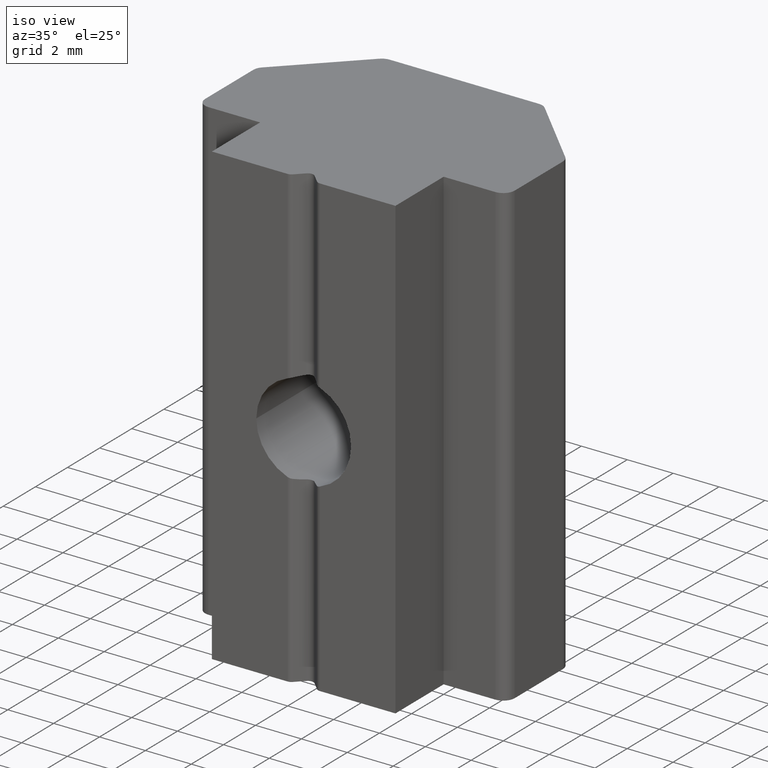
[diagram: clean part render]
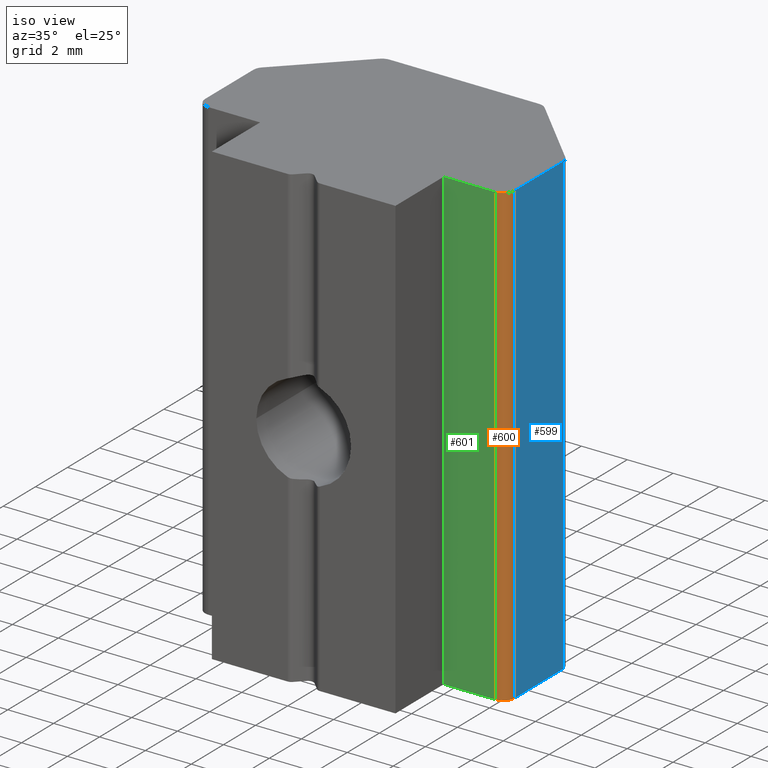
[diagram: same view with three faces highlighted in distinct colors, each labeled with its STEP entity id]
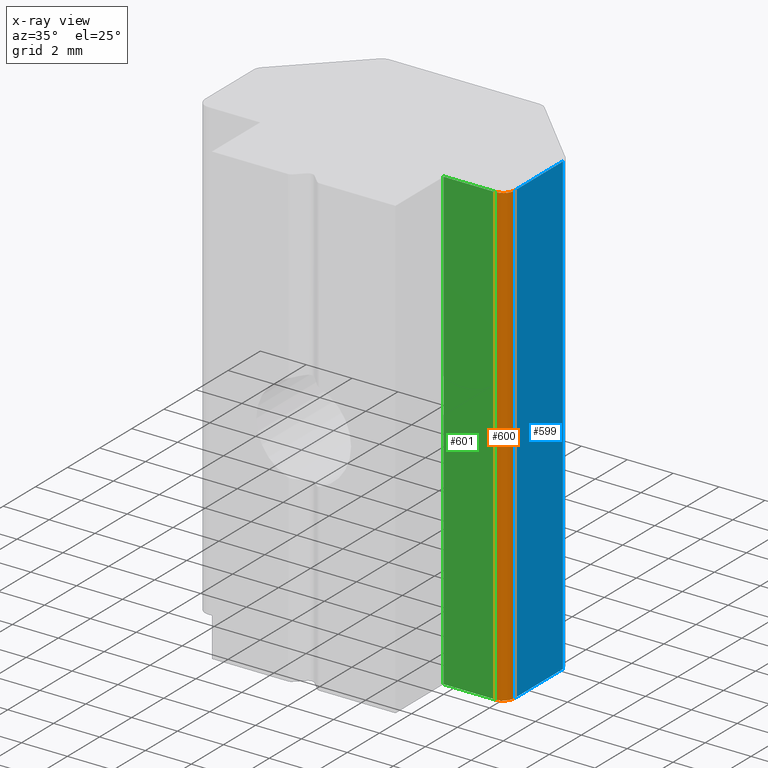
[diagram: x-ray of the same camera — body ghosted, the three highlighted faces saturated]
A machine part, iso view with three faces highlighted in distinct colors.
The next image is the same camera in x-ray (body ghosted, the three faces saturated) — at least one of them is partly hidden behind the body in this view.
Their STEP definitions:

[orange] entity #600 — the highlighted cylindrical surface (edge-blend (fillet) strip) has radius 0.5 mm, axis along (0, 0, 1).
#60=FACE_OUTER_BOUND('',#91,.T.);
#91=EDGE_LOOP('',(#530,#531,#532,#533));
#156=LINE('',#1059,#211);
#157=LINE('',#1063,#212);
#211=VECTOR('',#840,10.);
#212=VECTOR('',#845,10.);
#230=CIRCLE('',#657,0.499999999999999);
#236=CIRCLE('',#677,0.499999999999999);
#279=VERTEX_POINT('',#1001);
#280=VERTEX_POINT('',#1003);
#294=VERTEX_POINT('',#1057);
#295=VERTEX_POINT('',#1061);
#352=EDGE_CURVE('',#279,#280,#230,.T.);
#380=EDGE_CURVE('',#279,#294,#156,.T.);
#381=EDGE_CURVE('',#295,#294,#236,.T.);
#382=EDGE_CURVE('',#280,#295,#157,.T.);
#530=ORIENTED_EDGE('',*,*,#380,.T.);
#531=ORIENTED_EDGE('',*,*,#381,.F.);
#532=ORIENTED_EDGE('',*,*,#382,.F.);
#533=ORIENTED_EDGE('',*,*,#352,.F.);
#572=CYLINDRICAL_SURFACE('',#676,0.499999999999999);
#600=ADVANCED_FACE('',(#60),#572,.T.);
#657=AXIS2_PLACEMENT_3D('',#1004,#780,#781);
#676=AXIS2_PLACEMENT_3D('',#1060,#841,#842);
#677=AXIS2_PLACEMENT_3D('',#1062,#843,#844);
#780=DIRECTION('center_axis',(0.,0.,-1.));
#781=DIRECTION('ref_axis',(0.,-1.,0.));
#840=DIRECTION('',(0.,0.,1.));
#841=DIRECTION('center_axis',(0.,0.,1.));
#842=DIRECTION('ref_axis',(0.,-1.,0.));
#843=DIRECTION('center_axis',(0.,0.,1.));
#844=DIRECTION('ref_axis',(0.,-1.,0.));
#845=DIRECTION('',(0.,0.,1.));
#1001=CARTESIAN_POINT('',(6.75,0.5,-10.));
#1003=CARTESIAN_POINT('',(6.25,0.,-10.));
#1004=CARTESIAN_POINT('Origin',(6.25,0.5,-10.));
#1057=CARTESIAN_POINT('',(6.75,0.5,10.));
#1059=CARTESIAN_POINT('',(6.75,0.5,0.));
#1060=CARTESIAN_POINT('Origin',(6.25,0.5,0.));
#1061=CARTESIAN_POINT('',(6.25,0.,10.));
#1062=CARTESIAN_POINT('Origin',(6.25,0.5,10.));
#1063=CARTESIAN_POINT('',(6.25,0.,0.));

[blue] entity #599 — the highlighted planar face has unit normal (1, 0, 0).
#30=PLANE('',#675);
#59=FACE_OUTER_BOUND('',#90,.T.);
#90=EDGE_LOOP('',(#526,#527,#528,#529));
#133=LINE('',#1002,#188);
#154=LINE('',#1055,#209);
#155=LINE('',#1058,#210);
#156=LINE('',#1059,#211);
#188=VECTOR('',#779,10.);
#209=VECTOR('',#836,10.);
#210=VECTOR('',#839,10.);
#211=VECTOR('',#840,10.);
#278=VERTEX_POINT('',#999);
#279=VERTEX_POINT('',#1001);
#293=VERTEX_POINT('',#1053);
#294=VERTEX_POINT('',#1057);
#351=EDGE_CURVE('',#278,#279,#133,.T.);
#378=EDGE_CURVE('',#278,#293,#154,.T.);
#379=EDGE_CURVE('',#294,#293,#155,.T.);
#380=EDGE_CURVE('',#279,#294,#156,.T.);
#526=ORIENTED_EDGE('',*,*,#378,.T.);
#527=ORIENTED_EDGE('',*,*,#379,.F.);
#528=ORIENTED_EDGE('',*,*,#380,.F.);
#529=ORIENTED_EDGE('',*,*,#351,.F.);
#599=ADVANCED_FACE('',(#59),#30,.T.);
#675=AXIS2_PLACEMENT_3D('',#1056,#837,#838);
#779=DIRECTION('',(3.70074341541719E-16,-1.,0.));
#836=DIRECTION('',(0.,0.,1.));
#837=DIRECTION('center_axis',(1.,3.70074341541719E-16,0.));
#838=DIRECTION('ref_axis',(-3.70074341541719E-16,1.,0.));
#839=DIRECTION('',(-3.70074341541719E-16,1.,0.));
#840=DIRECTION('',(0.,0.,1.));
#999=CARTESIAN_POINT('',(6.75,3.5,-10.));
#1001=CARTESIAN_POINT('',(6.75,0.5,-10.));
#1002=CARTESIAN_POINT('',(6.75,0.5,-10.));
#1053=CARTESIAN_POINT('',(6.75,3.5,10.));
#1055=CARTESIAN_POINT('',(6.75,3.5,0.));
#1056=CARTESIAN_POINT('Origin',(6.75,0.5,0.));
#1057=CARTESIAN_POINT('',(6.75,0.5,10.));
#1058=CARTESIAN_POINT('',(6.75,0.5,10.));
#1059=CARTESIAN_POINT('',(6.75,0.5,0.));

[green] entity #601 — the highlighted planar face has unit normal (0, -1, 0).
#31=PLANE('',#678);
#61=FACE_OUTER_BOUND('',#92,.T.);
#92=EDGE_LOOP('',(#534,#535,#536,#537));
#134=LINE('',#1006,#189);
#136=LINE('',#1010,#191);
#157=LINE('',#1063,#212);
#158=LINE('',#1065,#213);
#189=VECTOR('',#782,10.);
#191=VECTOR('',#786,10.);
#212=VECTOR('',#845,10.);
#213=VECTOR('',#848,10.);
#280=VERTEX_POINT('',#1003);
#281=VERTEX_POINT('',#1005);
#282=VERTEX_POINT('',#1009);
#295=VERTEX_POINT('',#1061);
#353=EDGE_CURVE('',#280,#281,#134,.T.);
#355=EDGE_CURVE('',#282,#281,#136,.T.);
#382=EDGE_CURVE('',#280,#295,#157,.T.);
#383=EDGE_CURVE('',#282,#295,#158,.T.);
#534=ORIENTED_EDGE('',*,*,#382,.T.);
#535=ORIENTED_EDGE('',*,*,#383,.F.);
#536=ORIENTED_EDGE('',*,*,#355,.T.);
#537=ORIENTED_EDGE('',*,*,#353,.F.);
#601=ADVANCED_FACE('',(#61),#31,.T.);
#678=AXIS2_PLACEMENT_3D('',#1064,#846,#847);
#782=DIRECTION('',(-1.,0.,0.));
#786=DIRECTION('',(0.,0.,-1.));
#845=DIRECTION('',(0.,0.,1.));
#846=DIRECTION('center_axis',(0.,-1.,0.));
#847=DIRECTION('ref_axis',(1.,0.,0.));
#848=DIRECTION('',(1.,0.,0.));
#1003=CARTESIAN_POINT('',(6.25,0.,-10.));
#1005=CARTESIAN_POINT('',(4.,0.,-10.));
#1006=CARTESIAN_POINT('',(4.,0.,-10.));
#1009=CARTESIAN_POINT('',(4.,0.,10.));
#1010=CARTESIAN_POINT('',(4.,0.,0.));
#1061=CARTESIAN_POINT('',(6.25,0.,10.));
#1063=CARTESIAN_POINT('',(6.25,0.,0.));
#1064=CARTESIAN_POINT('Origin',(4.,0.,0.));
#1065=CARTESIAN_POINT('',(4.,0.,10.));